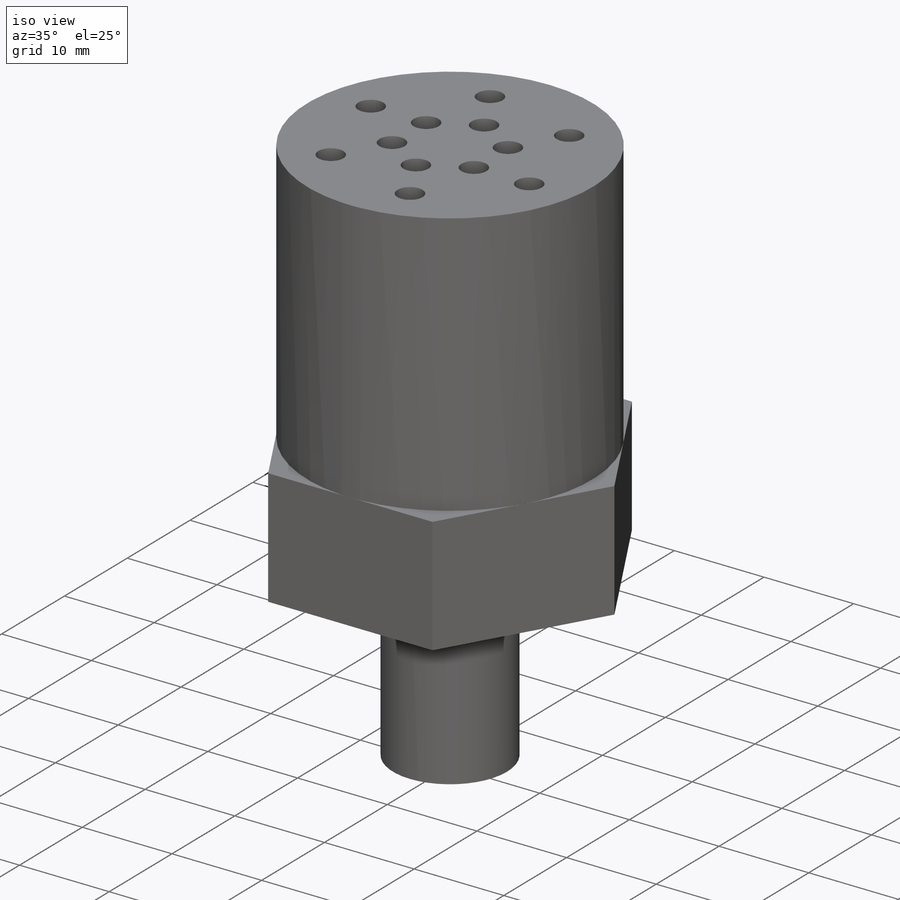
[diagram: iso view]
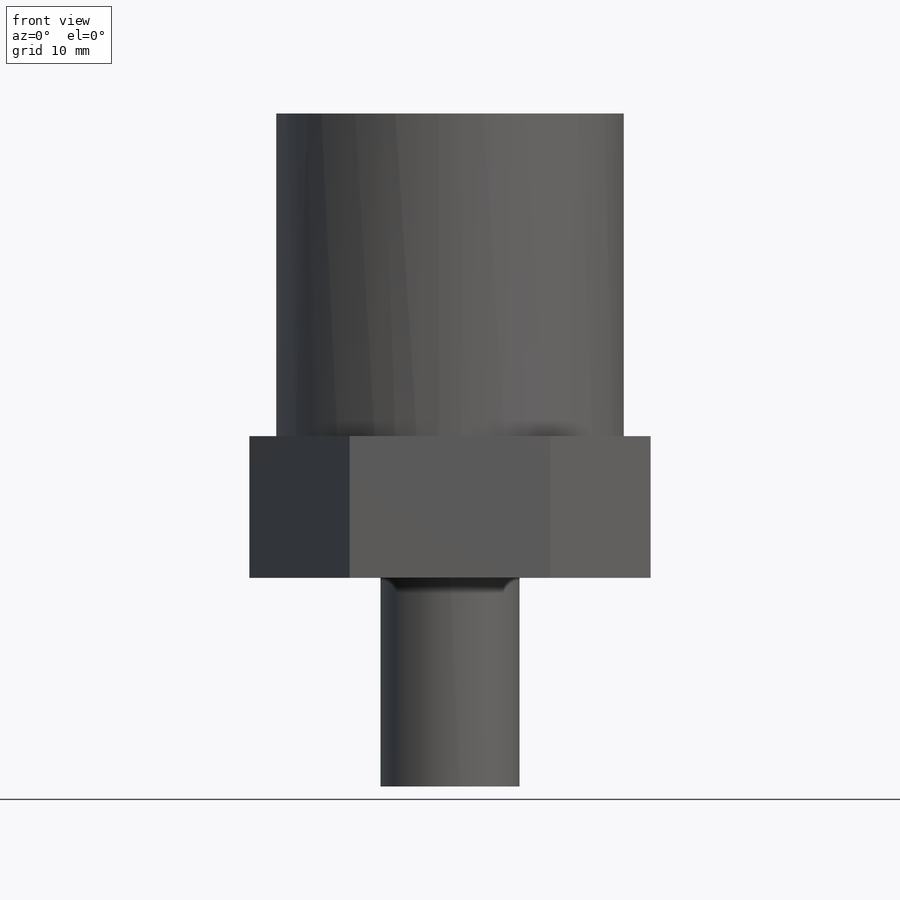
[diagram: front view]
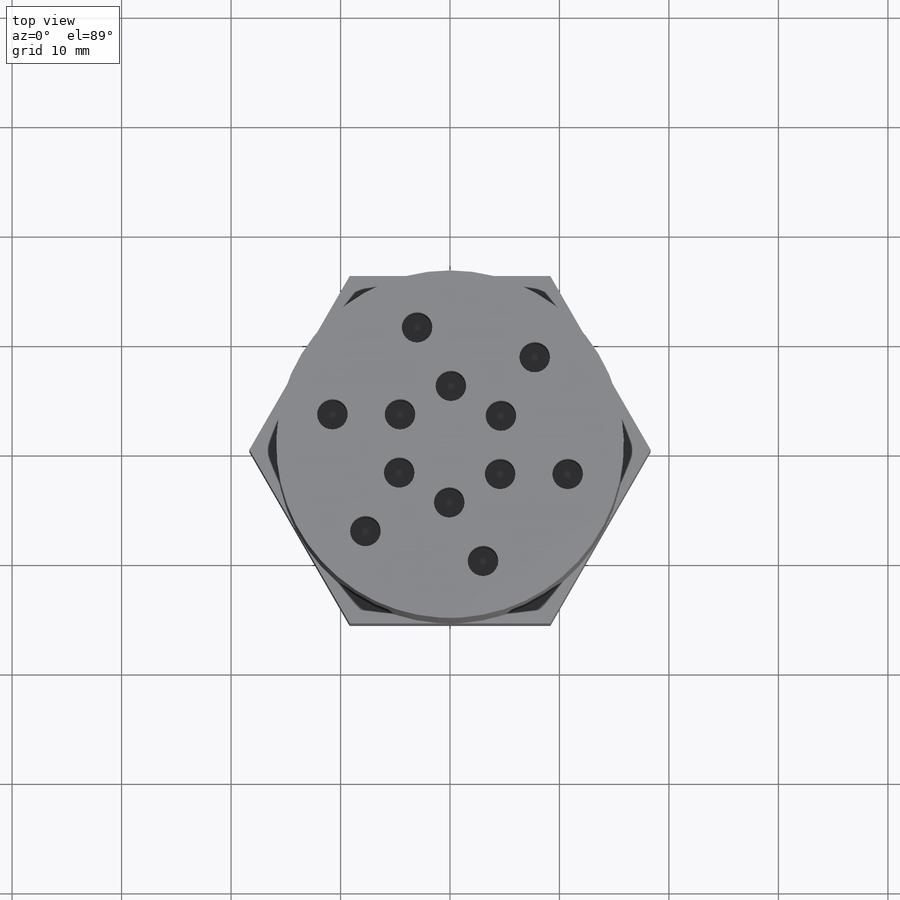
[diagram: top view]
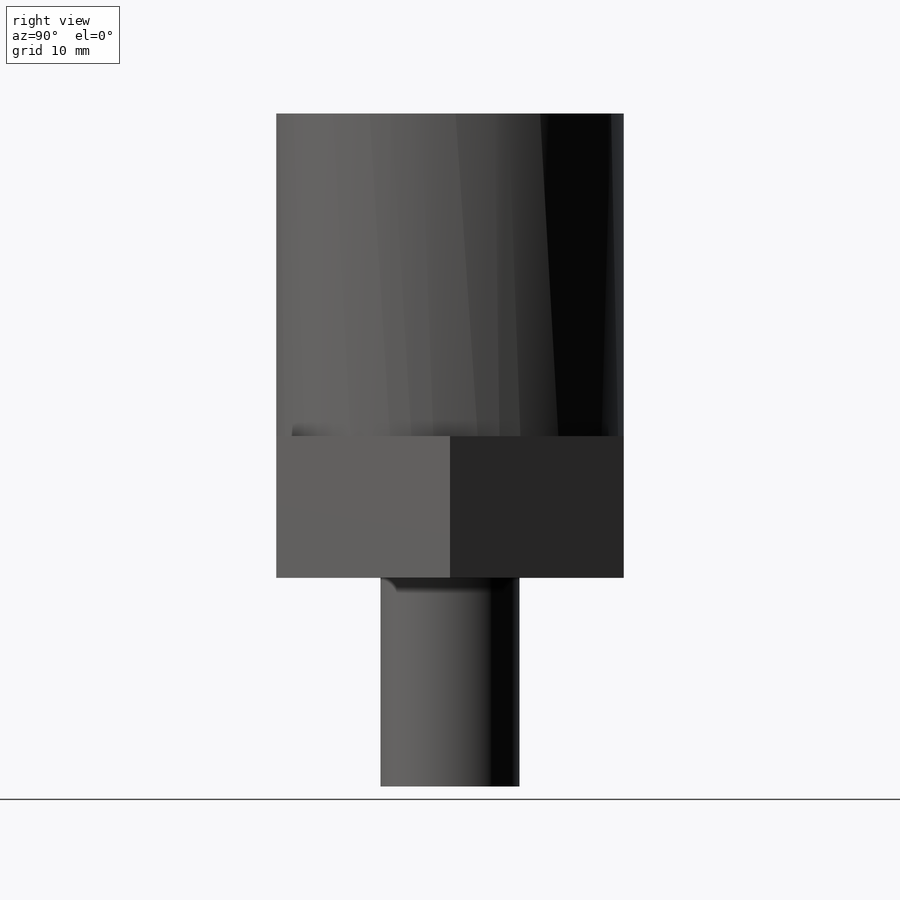
[diagram: right view]
SOLIDWORKS PART (.sldprt)
format: sldprt  version: not decoded by parser v0  size: 242,688 bytes
history: native  units: mm
features: sketch x4, extrude x3, material x1, thread x1, cut_extrude x1 (+11 scaffold rows collapsed)
feature tree (21):
  scaffold x11  (default folders/planes/origin — collapsed)
  material  "Material <not specified>"
  sketch  "Sketch1"  dims[D1=31.75mm]
  extrude  "Neoprene Body"  Depth=29.464mm
  sketch  "Sketch2"  dims[c1.D1=~4.272423mm c2.D1=~130.420603deg c2.D2=36.6522mm c2.D3=31.75mm c2.D4=~36.246843mm c3.D2=~17.486313mm c4.D2=~17.801421deg c5.D2=31.75mm c5.D4=31.75mm c5.D5=~20.308994mm c6.D2=15.875mm c7.D2=120.0deg]
  extrude  "Aluminum Bronze Body"  Depth=12.954mm
  sketch  "Sketch3"  dims[D1=12.7mm]
  extrude  "1/2-20 UNF 2A"  [1 undecoded]
  thread  "Cosmetic Thread1"  Diameter=11.1887mm  [1 undecoded]
  sketch  "Sketch4"  dims[D1=2.794mm D2=2.794mm D3=6.0]
  cut_extrude  "Cut-Extrude1"  Depth=10.16mm
decode coverage: 8 of 9 modeling features carry decoded parameters
note: ~ marks probable driven/reference dimensions
note: 2 parameter values undecoded
note: suppression state not decoded; provenance and decode notes live in map.json
